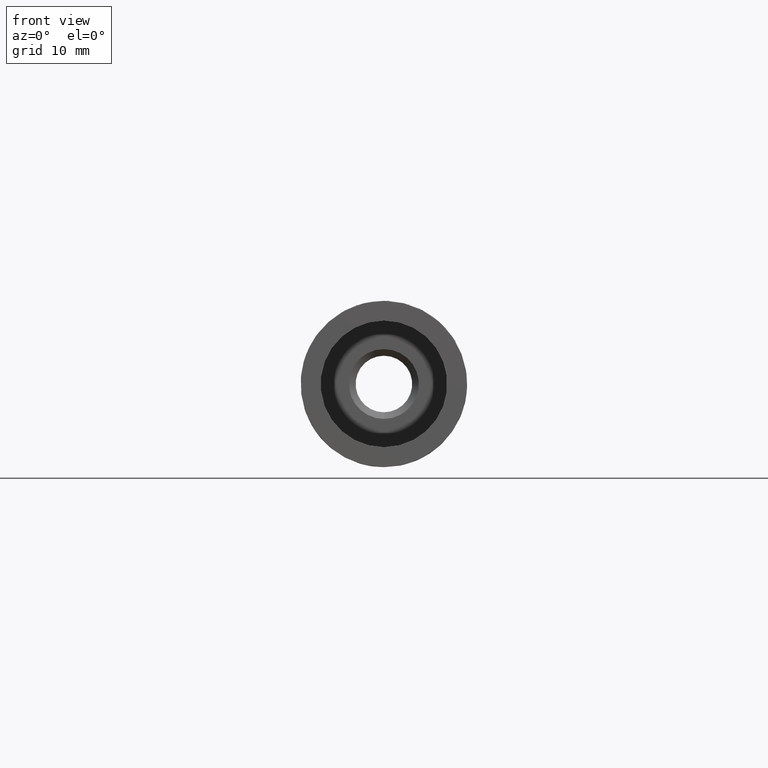
[diagram: clean part render]
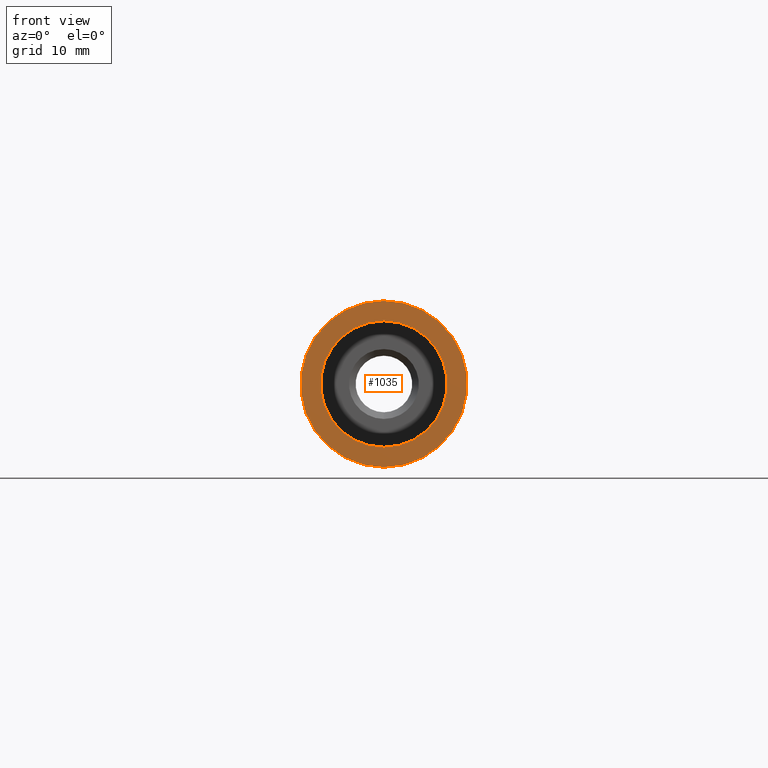
[diagram: same view with one face highlighted and labeled with its STEP entity id]
A machine part, front view. The second image highlights one B-rep face of the part: STEP entity #1035.
In plain terms, the highlighted planar face has unit normal (0, 1, 0).
Its self-contained STEP definition (entity closure, byte-faithful):
#1035 = ADVANCED_FACE ( 'NONE', ( #10784, #14982 ), #1201, .F. ) ;
#1144 = EDGE_LOOP ( 'NONE', ( #8556 ) ) ;
#1201 = PLANE ( 'NONE',  #13266 ) ;
#1796 = CIRCLE ( 'NONE', #6650, 12.50000000000000000 ) ;
#2372 = CARTESIAN_POINT ( 'NONE',  ( 0.000000000000000000, 0.000000000000000000, 0.000000000000000000 ) ) ;
#3025 = DIRECTION ( 'NONE',  ( 0.000000000000000000, 0.000000000000000000, 1.000000000000000000 ) ) ;
#3257 = DIRECTION ( 'NONE',  ( 0.000000000000000000, 0.000000000000000000, 1.000000000000000000 ) ) ;
#3763 = VERTEX_POINT ( 'NONE', #10656 ) ;
#6650 = AXIS2_PLACEMENT_3D ( 'NONE', #10246, #10448, #3257 ) ;
#6743 = EDGE_LOOP ( 'NONE', ( #11095 ) ) ;
#7288 = CARTESIAN_POINT ( 'NONE',  ( 0.000000000000000000, 0.000000000000000000, 9.500000000000000000 ) ) ;
#7351 = AXIS2_PLACEMENT_3D ( 'NONE', #13589, #8803, #3025 ) ;
#8485 = EDGE_CURVE ( 'NONE', #14975, #14975, #12009, .T. ) ;
#8556 = ORIENTED_EDGE ( 'NONE', *, *, #11786, .F. ) ;
#8803 = DIRECTION ( 'NONE',  ( 0.000000000000000000, 1.000000000000000000, 0.000000000000000000 ) ) ;
#10246 = CARTESIAN_POINT ( 'NONE',  ( 0.000000000000000000, 0.000000000000000000, 0.000000000000000000 ) ) ;
#10448 = DIRECTION ( 'NONE',  ( 0.000000000000000000, 1.000000000000000000, 0.000000000000000000 ) ) ;
#10598 = DIRECTION ( 'NONE',  ( 0.000000000000000000, -0.000000000000000000, 1.000000000000000000 ) ) ;
#10649 = DIRECTION ( 'NONE',  ( 0.000000000000000000, 1.000000000000000000, 0.000000000000000000 ) ) ;
#10656 = CARTESIAN_POINT ( 'NONE',  ( 0.000000000000000000, 0.000000000000000000, 12.50000000000000000 ) ) ;
#10784 = FACE_OUTER_BOUND ( 'NONE', #1144, .T. ) ;
#11095 = ORIENTED_EDGE ( 'NONE', *, *, #8485, .T. ) ;
#11786 = EDGE_CURVE ( 'NONE', #3763, #3763, #1796, .T. ) ;
#12009 = CIRCLE ( 'NONE', #7351, 9.500000000000000000 ) ;
#13266 = AXIS2_PLACEMENT_3D ( 'NONE', #2372, #10649, #10598 ) ;
#13589 = CARTESIAN_POINT ( 'NONE',  ( 0.000000000000000000, 0.000000000000000000, 0.000000000000000000 ) ) ;
#14975 = VERTEX_POINT ( 'NONE', #7288 ) ;
#14982 = FACE_BOUND ( 'NONE', #6743, .T. ) ;